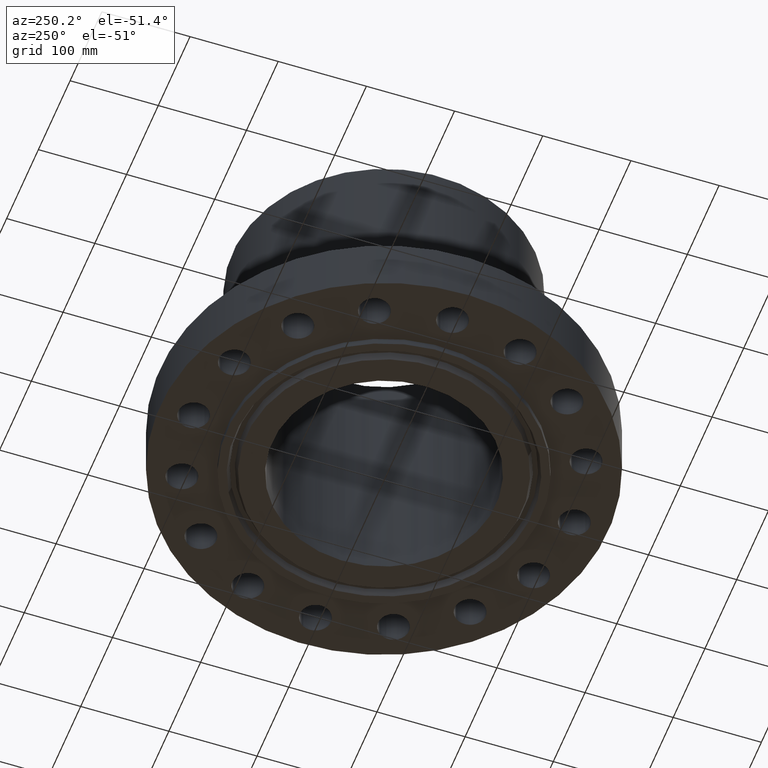
[diagram: clean part render]
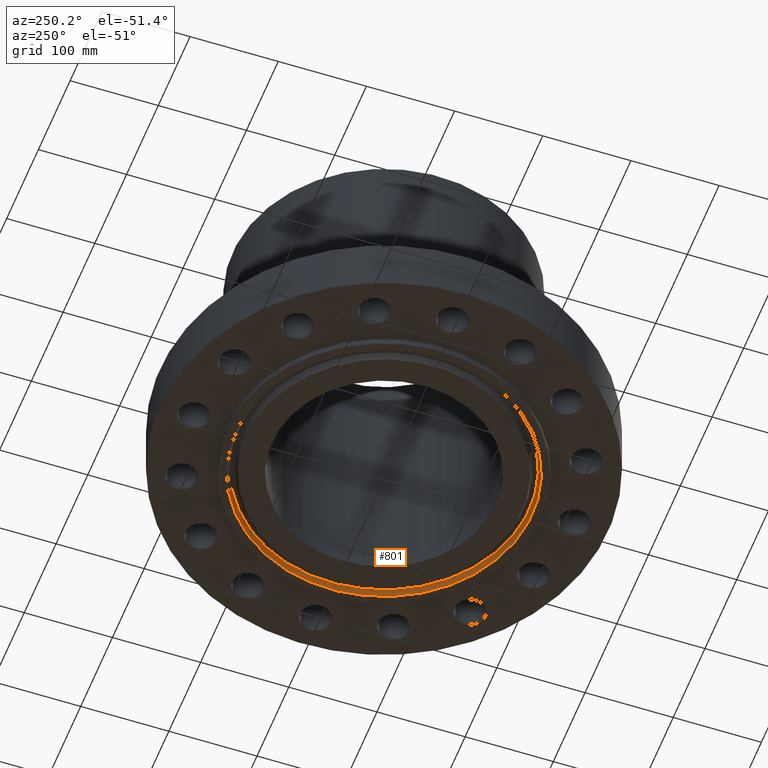
[diagram: same view with one face highlighted and labeled with its STEP entity id]
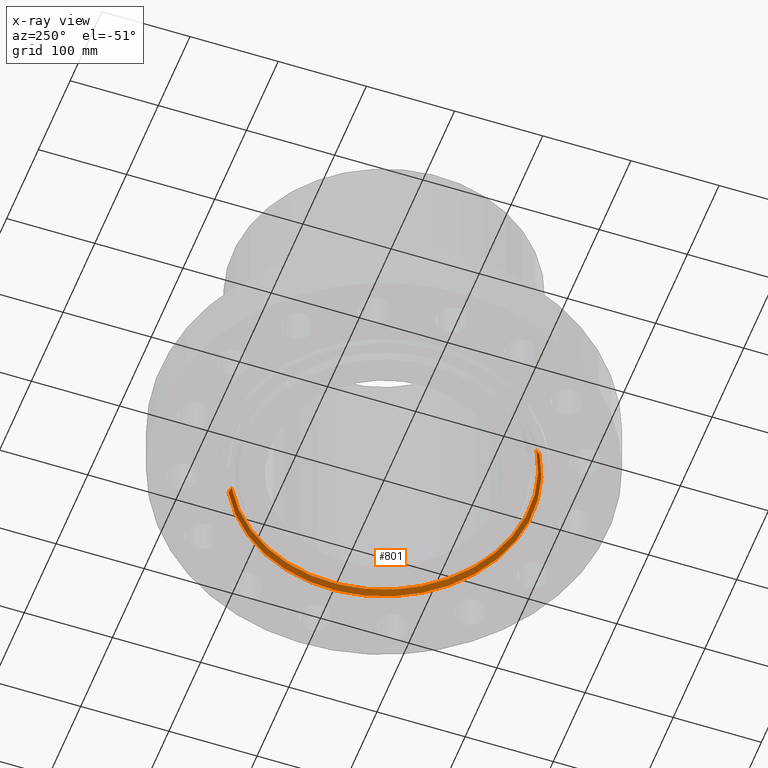
[diagram: x-ray of the same camera — body ghosted, the highlighted face saturated]
A machine part, auxiliary view. The second image highlights one B-rep face of the part: STEP entity #801.
The next image is the same camera in x-ray: the body ghosted, the highlighted face saturated — about 0% of this face is hidden behind the body in this view.
In plain terms, the highlighted conical surface has half-angle 23 deg.
Its self-contained STEP definition (entity closure, byte-faithful):
#749=AXIS2_PLACEMENT_3D('Circle Axis2P3D',#747,#748,$) ;
#762=AXIS2_PLACEMENT_3D('Cone Axis2P3D',#759,#760,#761) ;
#792=AXIS2_PLACEMENT_3D('Circle Axis2P3D',#790,#791,$) ;
#725=CARTESIAN_POINT('Vertex',(-3.10890997382,-5.69082153499,-0.0188873350169)) ;
#732=CARTESIAN_POINT('Vertex',(3.10890997382,5.69082153499,-0.0188873350169)) ;
#747=CARTESIAN_POINT('Axis2P3D Location',(0.,0.,-0.0188873350169)) ;
#759=CARTESIAN_POINT('Axis2P3D Location',(0.,0.,-0.0188873350169)) ;
#764=CARTESIAN_POINT('Line Origine',(-3.13883653562,-5.74560173892,-0.165943667509)) ;
#768=CARTESIAN_POINT('Vertex',(-3.16876309742,-5.80038194284,-0.313000000001)) ;
#775=CARTESIAN_POINT('Vertex',(3.16876309742,5.80038194284,-0.313000000001)) ;
#778=CARTESIAN_POINT('Line Origine',(3.13883653562,5.74560173892,-0.165943667509)) ;
#790=CARTESIAN_POINT('Axis2P3D Location',(0.,0.,-0.313000000001)) ;
#748=DIRECTION('Axis2P3D Direction',(0.,0.,-0.0393700787402)) ;
#760=DIRECTION('Axis2P3D Direction',(0.,0.,-0.0393700787402)) ;
#761=DIRECTION('Axis2P3D XDirection',(0.0188750212049,0.0345504945626,0.)) ;
#765=DIRECTION('Vector Direction',(-0.00737505833565,-0.0134999537303,-0.0362403485611)) ;
#779=DIRECTION('Vector Direction',(0.00737505833565,0.0134999537303,-0.0362403485611)) ;
#791=DIRECTION('Axis2P3D Direction',(0.,0.,-0.0393700787402)) ;
#766=VECTOR('Line Direction',#765,0.0393700787402) ;
#780=VECTOR('Line Direction',#779,0.0393700787402) ;
#796=ORIENTED_EDGE('',*,*,#751,.F.) ;
#797=ORIENTED_EDGE('',*,*,#782,.T.) ;
#798=ORIENTED_EDGE('',*,*,#794,.T.) ;
#799=ORIENTED_EDGE('',*,*,#770,.F.) ;
#801=ADVANCED_FACE('PartBody',(#800),#763,.F.) ;
#750=CIRCLE('generated circle',#749,6.48465658061) ;
#793=CIRCLE('generated circle',#792,6.60950000003) ;
#763=CONICAL_SURFACE('Cone',#762,6.48465658061,0.401425727959) ;
#751=EDGE_CURVE('',#733,#726,#750,.T.) ;
#770=EDGE_CURVE('',#726,#769,#767,.T.) ;
#782=EDGE_CURVE('',#733,#776,#781,.T.) ;
#794=EDGE_CURVE('',#776,#769,#793,.T.) ;
#795=EDGE_LOOP('',(#796,#797,#798,#799)) ;
#800=FACE_OUTER_BOUND('',#795,.T.) ;
#767=LINE('Line',#764,#766) ;
#781=LINE('Line',#778,#780) ;
#726=VERTEX_POINT('',#725) ;
#733=VERTEX_POINT('',#732) ;
#769=VERTEX_POINT('',#768) ;
#776=VERTEX_POINT('',#775) ;